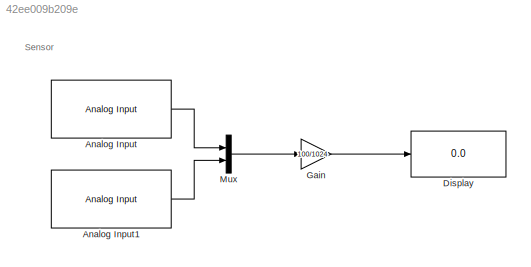
MODEL slx_42ee009b209e
KIND model
CONFIG AbsTol = auto
CONFIG EnableMultiTasking = on
CONFIG FixedStep = auto
CONFIG MaxStep = auto
CONFIG MinStep = auto
CONFIG RelTol = 1e-3
CONFIG SampleTimeConstraint = Unconstrained
CONFIG SolverName = FixedStepAuto
CONFIG StartTime = 0.0
CONFIG StopTime = 10.0
BLOCK [Reference] Analog Input  REF=arduinolib/Analog Input
  SourceBlock = arduinolib/Analog Input
  SourceType = Arduino Analog Input
BLOCK [Reference] Analog Input1  REF=arduinolib/Analog Input
  SourceBlock = arduinolib/Analog Input
  SourceType = Arduino Analog Input
BLOCK [Display] Display
  Decimation = 1
BLOCK [Gain] Gain
  Gain = 100/1024
BLOCK [Mux] Mux
  DisplayOption = bar
  Inputs = 2
ANNOTATION (root): Sensor
LINE Analog Input1:1 -> Mux:2
LINE Analog Input:1 -> Mux:1
LINE Gain:1 -> Display:1
LINE Mux:1 -> Gain:1
